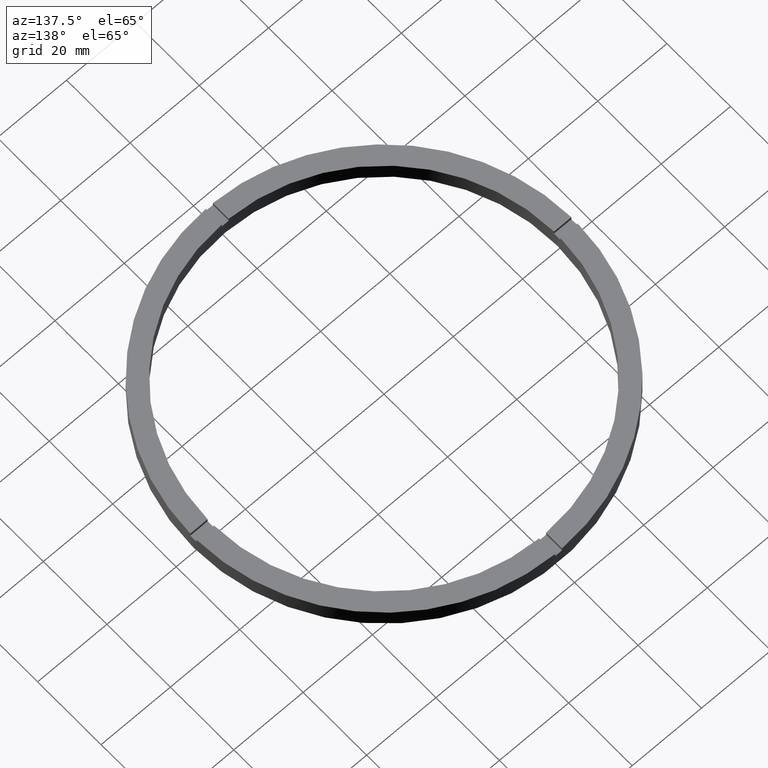
[diagram: clean part render]
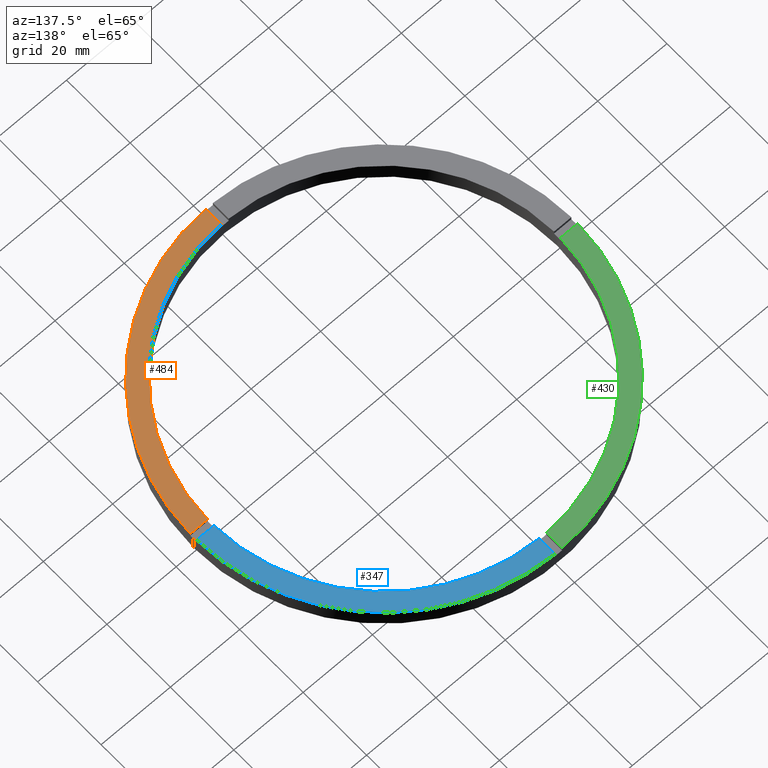
[diagram: same view with three faces highlighted in distinct colors, each labeled with its STEP entity id]
A machine part, auxiliary view with three faces highlighted in distinct colors.
Their STEP definitions:

[orange] entity #484 — the highlighted planar face has unit normal (0, 0, 1).
#10 = DIRECTION ( 'NONE',  ( 1.000000000000000000, 0.000000000000000000, 0.000000000000000000 ) ) ;
#32 = EDGE_CURVE ( 'NONE', #173, #150, #730, .T. ) ;
#35 = CARTESIAN_POINT ( 'NONE',  ( 54.99090833947007440, -1.000000000000154099, 5.500000000000000000 ) ) ;
#69 = VERTEX_POINT ( 'NONE', #373 ) ;
#92 = EDGE_CURVE ( 'NONE', #173, #735, #712, .T. ) ;
#95 = CARTESIAN_POINT ( 'NONE',  ( 0.9999999999998432365, -45.00000000000017764, 5.500000000000000000 ) ) ;
#96 = EDGE_LOOP ( 'NONE', ( #222, #438, #742, #137 ) ) ;
#133 = AXIS2_PLACEMENT_3D ( 'NONE', #506, #281, #333 ) ;
#137 = ORIENTED_EDGE ( 'NONE', *, *, #32, .T. ) ;
#150 = VERTEX_POINT ( 'NONE', #35 ) ;
#167 = CARTESIAN_POINT ( 'NONE',  ( 0.000000000000000000, 0.000000000000000000, 5.500000000000000000 ) ) ;
#173 = VERTEX_POINT ( 'NONE', #378 ) ;
#208 = VECTOR ( 'NONE', #456, 1000.000000000000000 ) ;
#212 = EDGE_CURVE ( 'NONE', #735, #69, #453, .T. ) ;
#222 = ORIENTED_EDGE ( 'NONE', *, *, #363, .F. ) ;
#232 = CARTESIAN_POINT ( 'NONE',  ( 0.000000000000000000, 0.000000000000000000, 5.500000000000000000 ) ) ;
#241 = FACE_OUTER_BOUND ( 'NONE', #96, .T. ) ;
#281 = DIRECTION ( 'NONE',  ( 0.000000000000000000, 0.000000000000000000, 1.000000000000000000 ) ) ;
#315 = AXIS2_PLACEMENT_3D ( 'NONE', #232, #705, #340 ) ;
#333 = DIRECTION ( 'NONE',  ( 1.000000000000000000, 0.000000000000000000, 0.000000000000000000 ) ) ;
#340 = DIRECTION ( 'NONE',  ( 1.000000000000000000, 0.000000000000000000, -0.000000000000000000 ) ) ;
#363 = EDGE_CURVE ( 'NONE', #69, #150, #758, .T. ) ;
#371 = DIRECTION ( 'NONE',  ( 1.000000000000000000, 8.673617379884034239E-17, 0.000000000000000000 ) ) ;
#373 = CARTESIAN_POINT ( 'NONE',  ( 49.98999899979995121, -1.000000000000154543, 5.500000000000000000 ) ) ;
#378 = CARTESIAN_POINT ( 'NONE',  ( 0.9999999999998445688, -54.99090833947008150, 5.500000000000000000 ) ) ;
#438 = ORIENTED_EDGE ( 'NONE', *, *, #212, .F. ) ;
#453 = CIRCLE ( 'NONE', #133, 50.00000000000000000 ) ;
#456 = DIRECTION ( 'NONE',  ( -1.301042606982605074E-16, 1.000000000000000000, -0.000000000000000000 ) ) ;
#484 = ADVANCED_FACE ( 'NONE', ( #241 ), #633, .T. ) ;
#506 = CARTESIAN_POINT ( 'NONE',  ( 0.000000000000000000, 0.000000000000000000, 5.500000000000000000 ) ) ;
#508 = CARTESIAN_POINT ( 'NONE',  ( 0.9999999999998439026, -49.98999899979995831, 5.500000000000000000 ) ) ;
#538 = DIRECTION ( 'NONE',  ( 0.000000000000000000, 0.000000000000000000, 1.000000000000000000 ) ) ;
#608 = AXIS2_PLACEMENT_3D ( 'NONE', #167, #538, #10 ) ;
#611 = CARTESIAN_POINT ( 'NONE',  ( 44.99999999999999289, -1.000000000000154987, 5.500000000000000000 ) ) ;
#633 = PLANE ( 'NONE',  #315 ) ;
#705 = DIRECTION ( 'NONE',  ( 0.000000000000000000, 0.000000000000000000, 1.000000000000000000 ) ) ;
#712 = LINE ( 'NONE', #95, #208 ) ;
#730 = CIRCLE ( 'NONE', #608, 55.00000000000000000 ) ;
#735 = VERTEX_POINT ( 'NONE', #508 ) ;
#742 = ORIENTED_EDGE ( 'NONE', *, *, #92, .F. ) ;
#758 = LINE ( 'NONE', #611, #762 ) ;
#762 = VECTOR ( 'NONE', #371, 1000.000000000000000 ) ;

[blue] entity #347 — the highlighted planar face has unit normal (0, 0, 1).
#1 = CARTESIAN_POINT ( 'NONE',  ( 0.9999999999999726885, 54.99090833947007440, 5.500000000000000000 ) ) ;
#37 = CARTESIAN_POINT ( 'NONE',  ( 0.9999999999999726885, 45.00000000000000000, 5.500000000000000000 ) ) ;
#51 = VERTEX_POINT ( 'NONE', #1 ) ;
#68 = EDGE_CURVE ( 'NONE', #213, #51, #706, .T. ) ;
#72 = EDGE_CURVE ( 'NONE', #409, #51, #204, .T. ) ;
#159 = EDGE_LOOP ( 'NONE', ( #383, #649, #715, #646 ) ) ;
#179 = VERTEX_POINT ( 'NONE', #607 ) ;
#185 = VECTOR ( 'NONE', #525, 1000.000000000000000 ) ;
#204 = LINE ( 'NONE', #37, #185 ) ;
#213 = VERTEX_POINT ( 'NONE', #446 ) ;
#218 = CARTESIAN_POINT ( 'NONE',  ( 0.9999999999999726885, 49.98999899979995121, 5.500000000000000000 ) ) ;
#276 = DIRECTION ( 'NONE',  ( 0.000000000000000000, 0.000000000000000000, 1.000000000000000000 ) ) ;
#344 = AXIS2_PLACEMENT_3D ( 'NONE', #452, #276, #511 ) ;
#347 = ADVANCED_FACE ( 'NONE', ( #504 ), #660, .T. ) ;
#383 = ORIENTED_EDGE ( 'NONE', *, *, #72, .F. ) ;
#384 = DIRECTION ( 'NONE',  ( 0.000000000000000000, 0.000000000000000000, 1.000000000000000000 ) ) ;
#392 = CARTESIAN_POINT ( 'NONE',  ( 0.000000000000000000, 0.000000000000000000, 5.500000000000000000 ) ) ;
#409 = VERTEX_POINT ( 'NONE', #218 ) ;
#429 = DIRECTION ( 'NONE',  ( 0.000000000000000000, 0.000000000000000000, 1.000000000000000000 ) ) ;
#444 = DIRECTION ( 'NONE',  ( 1.000000000000000000, 0.000000000000000000, 0.000000000000000000 ) ) ;
#446 = CARTESIAN_POINT ( 'NONE',  ( 54.99090833947008150, 0.9999999999998459010, 5.500000000000000000 ) ) ;
#452 = CARTESIAN_POINT ( 'NONE',  ( 0.000000000000000000, 0.000000000000000000, 5.500000000000000000 ) ) ;
#504 = FACE_OUTER_BOUND ( 'NONE', #159, .T. ) ;
#511 = DIRECTION ( 'NONE',  ( 1.000000000000000000, 0.000000000000000000, -0.000000000000000000 ) ) ;
#518 = CIRCLE ( 'NONE', #597, 50.00000000000000000 ) ;
#524 = VECTOR ( 'NONE', #601, 1000.000000000000000 ) ;
#525 = DIRECTION ( 'NONE',  ( 0.000000000000000000, 1.000000000000000000, 0.000000000000000000 ) ) ;
#597 = AXIS2_PLACEMENT_3D ( 'NONE', #744, #429, #671 ) ;
#601 = DIRECTION ( 'NONE',  ( -1.000000000000000000, -8.673617379884034239E-17, -0.000000000000000000 ) ) ;
#607 = CARTESIAN_POINT ( 'NONE',  ( 49.98999899979995831, 0.9999999999998454570, 5.500000000000000000 ) ) ;
#613 = CARTESIAN_POINT ( 'NONE',  ( 44.99999999999999289, 0.9999999999998450129, 5.500000000000000000 ) ) ;
#646 = ORIENTED_EDGE ( 'NONE', *, *, #68, .T. ) ;
#649 = ORIENTED_EDGE ( 'NONE', *, *, #685, .F. ) ;
#660 = PLANE ( 'NONE',  #344 ) ;
#665 = EDGE_CURVE ( 'NONE', #213, #179, #757, .T. ) ;
#671 = DIRECTION ( 'NONE',  ( 1.000000000000000000, 0.000000000000000000, 0.000000000000000000 ) ) ;
#685 = EDGE_CURVE ( 'NONE', #179, #409, #518, .T. ) ;
#706 = CIRCLE ( 'NONE', #713, 55.00000000000000000 ) ;
#713 = AXIS2_PLACEMENT_3D ( 'NONE', #392, #384, #444 ) ;
#715 = ORIENTED_EDGE ( 'NONE', *, *, #665, .F. ) ;
#744 = CARTESIAN_POINT ( 'NONE',  ( 0.000000000000000000, 0.000000000000000000, 5.500000000000000000 ) ) ;
#757 = LINE ( 'NONE', #613, #524 ) ;

[green] entity #430 — the highlighted planar face has unit normal (0, 0, 1).
#14 = AXIS2_PLACEMENT_3D ( 'NONE', #533, #101, #403 ) ;
#34 = DIRECTION ( 'NONE',  ( 1.000000000000000000, 0.000000000000000000, 0.000000000000000000 ) ) ;
#88 = CARTESIAN_POINT ( 'NONE',  ( -54.99090833947007440, 0.9999999999999672484, 5.500000000000000000 ) ) ;
#90 = EDGE_LOOP ( 'NONE', ( #380, #645, #454, #149 ) ) ;
#101 = DIRECTION ( 'NONE',  ( 0.000000000000000000, 0.000000000000000000, 1.000000000000000000 ) ) ;
#111 = EDGE_CURVE ( 'NONE', #442, #408, #716, .T. ) ;
#149 = ORIENTED_EDGE ( 'NONE', *, *, #486, .F. ) ;
#176 = DIRECTION ( 'NONE',  ( 1.000000000000000000, 0.000000000000000000, 0.000000000000000000 ) ) ;
#196 = CARTESIAN_POINT ( 'NONE',  ( -1.000000000000027311, 49.98999899979995121, 5.500000000000000000 ) ) ;
#231 = LINE ( 'NONE', #437, #250 ) ;
#244 = CIRCLE ( 'NONE', #497, 50.00000000000000000 ) ;
#250 = VECTOR ( 'NONE', #332, 1000.000000000000000 ) ;
#274 = AXIS2_PLACEMENT_3D ( 'NONE', #531, #471, #34 ) ;
#317 = DIRECTION ( 'NONE',  ( -0.000000000000000000, -1.000000000000000000, -0.000000000000000000 ) ) ;
#332 = DIRECTION ( 'NONE',  ( -1.000000000000000000, -1.951563910473907735E-16, 0.000000000000000000 ) ) ;
#335 = EDGE_CURVE ( 'NONE', #724, #408, #231, .T. ) ;
#342 = EDGE_CURVE ( 'NONE', #442, #387, #485, .T. ) ;
#380 = ORIENTED_EDGE ( 'NONE', *, *, #342, .F. ) ;
#387 = VERTEX_POINT ( 'NONE', #196 ) ;
#403 = DIRECTION ( 'NONE',  ( 1.000000000000000000, 0.000000000000000000, -0.000000000000000000 ) ) ;
#408 = VERTEX_POINT ( 'NONE', #88 ) ;
#412 = CARTESIAN_POINT ( 'NONE',  ( 0.000000000000000000, 0.000000000000000000, 5.500000000000000000 ) ) ;
#430 = ADVANCED_FACE ( 'NONE', ( #741 ), #687, .T. ) ;
#437 = CARTESIAN_POINT ( 'NONE',  ( -45.00000000000018474, 0.9999999999999690248, 5.500000000000000000 ) ) ;
#442 = VERTEX_POINT ( 'NONE', #537 ) ;
#449 = CARTESIAN_POINT ( 'NONE',  ( -49.98999899979995121, 0.9999999999999681366, 5.500000000000000000 ) ) ;
#454 = ORIENTED_EDGE ( 'NONE', *, *, #335, .F. ) ;
#471 = DIRECTION ( 'NONE',  ( 0.000000000000000000, 0.000000000000000000, 1.000000000000000000 ) ) ;
#485 = LINE ( 'NONE', #559, #499 ) ;
#486 = EDGE_CURVE ( 'NONE', #387, #724, #244, .T. ) ;
#497 = AXIS2_PLACEMENT_3D ( 'NONE', #412, #638, #176 ) ;
#499 = VECTOR ( 'NONE', #317, 1000.000000000000000 ) ;
#531 = CARTESIAN_POINT ( 'NONE',  ( 0.000000000000000000, 0.000000000000000000, 5.500000000000000000 ) ) ;
#533 = CARTESIAN_POINT ( 'NONE',  ( 0.000000000000000000, 0.000000000000000000, 5.500000000000000000 ) ) ;
#537 = CARTESIAN_POINT ( 'NONE',  ( -1.000000000000027311, 54.99090833947007440, 5.500000000000000000 ) ) ;
#559 = CARTESIAN_POINT ( 'NONE',  ( -1.000000000000027311, 45.00000000000000000, 5.500000000000000000 ) ) ;
#638 = DIRECTION ( 'NONE',  ( 0.000000000000000000, 0.000000000000000000, 1.000000000000000000 ) ) ;
#645 = ORIENTED_EDGE ( 'NONE', *, *, #111, .T. ) ;
#687 = PLANE ( 'NONE',  #14 ) ;
#716 = CIRCLE ( 'NONE', #274, 55.00000000000000000 ) ;
#724 = VERTEX_POINT ( 'NONE', #449 ) ;
#741 = FACE_OUTER_BOUND ( 'NONE', #90, .T. ) ;